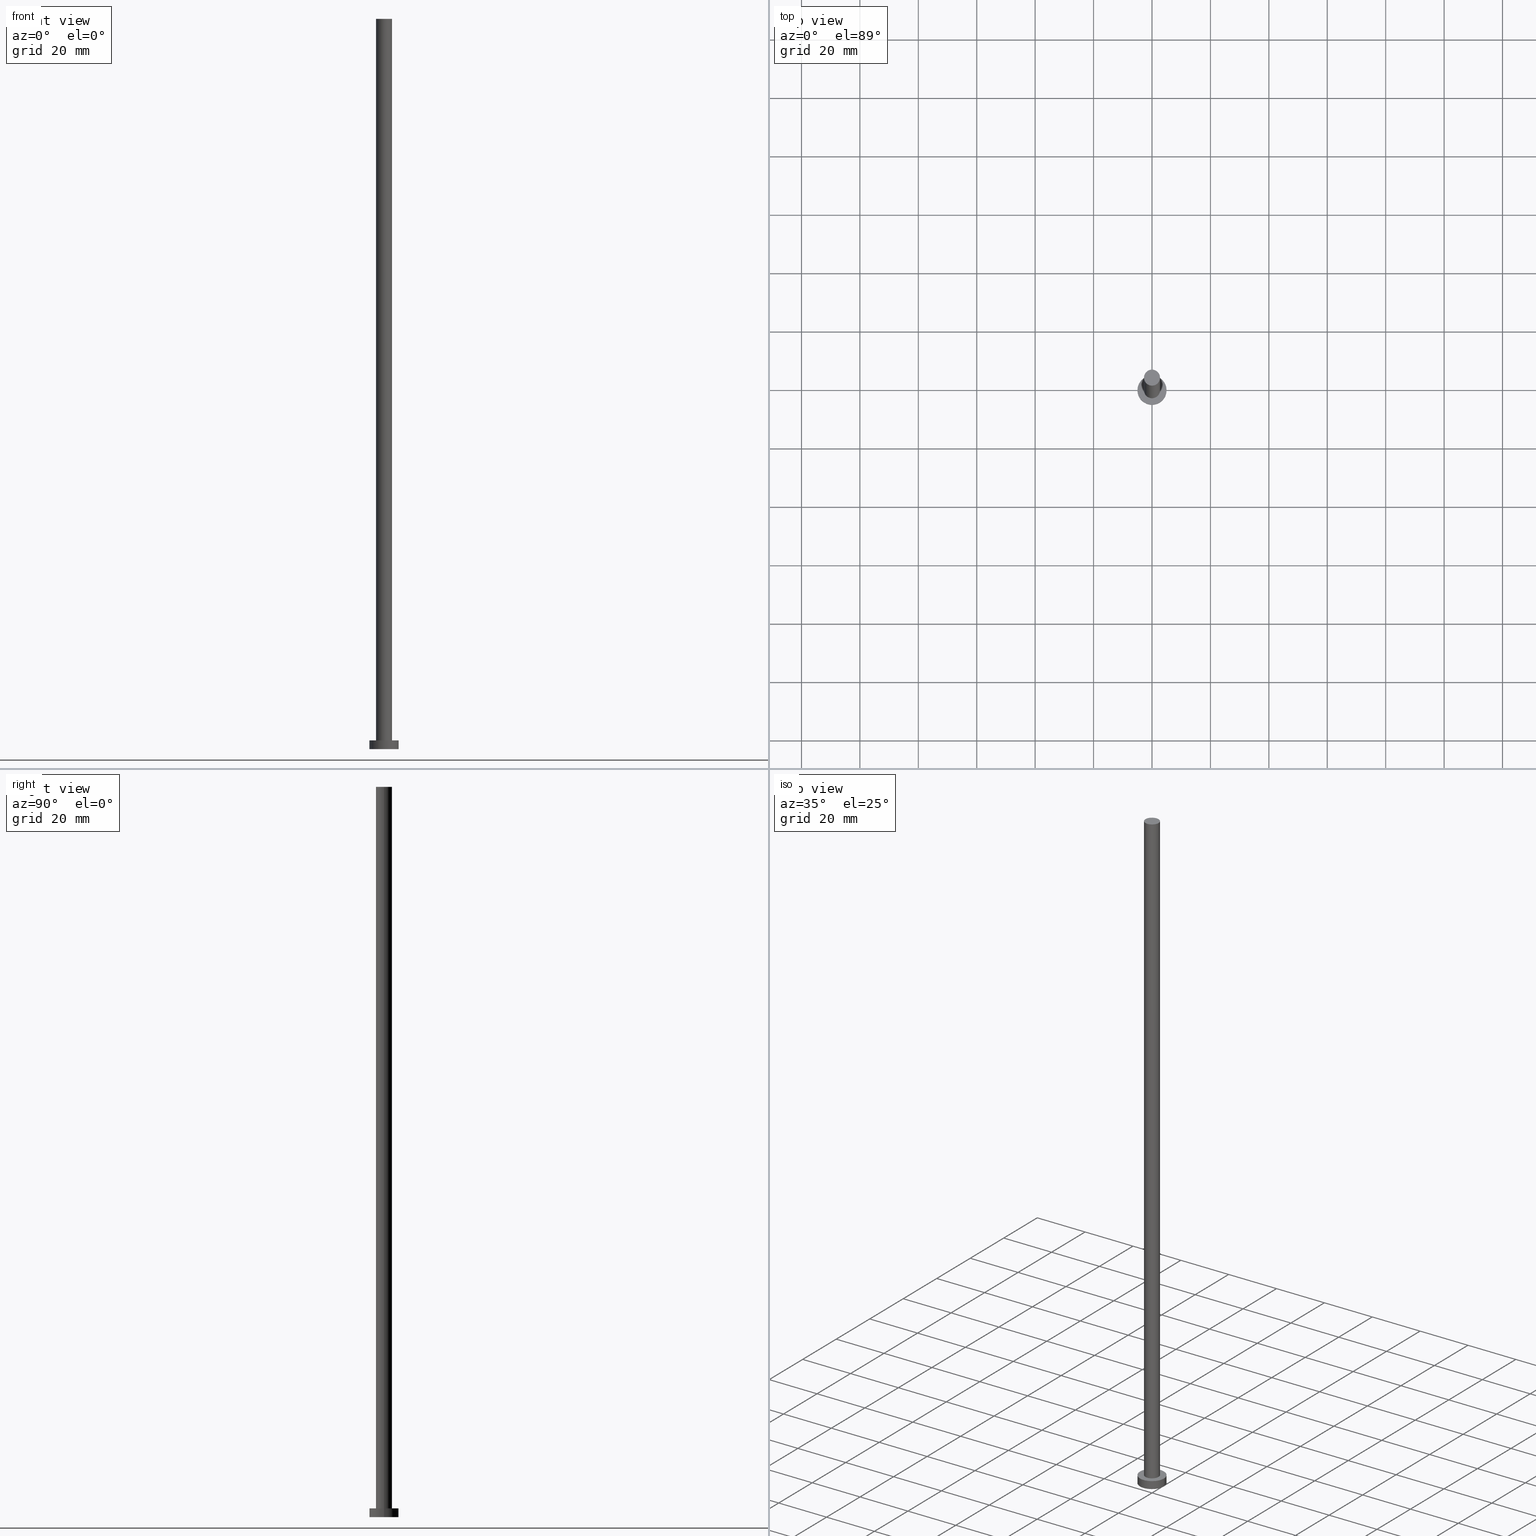
[diagram: canonical four-view strip — front | top / right | iso, engineering-drawing reading convention]
A machine part, canonical four-view strip (front | top / right | iso — engineering-drawing reading convention). The complete STEP part file that produces these views, byte-faithful:
ISO-10303-21;
HEADER;
FILE_DESCRIPTION (( 'STEP AP203' ),
    '1' );
FILE_NAME ('622f.STEP',
    '2023-02-12T11:41:53',
    ( '' ),
    ( '' ),
    'SwSTEP 2.0',
    'SolidWorks 2019',
    '' );
FILE_SCHEMA (( 'CONFIG_CONTROL_DESIGN' ));
ENDSEC;

DATA;
#1 = CALENDAR_DATE ( 2023, 12, 2 ) ;
#2 = ORIENTED_EDGE ( 'NONE', *, *, #231, .F. ) ;
#3 = VECTOR ( 'NONE', #37, 1000.000000000000000 ) ;
#4 = PERSON_AND_ORGANIZATION_ROLE ( 'creator' ) ;
#5 = FACE_OUTER_BOUND ( 'NONE', #221, .T. ) ;
#6 = COORDINATED_UNIVERSAL_TIME_OFFSET ( 1, 0, .AHEAD. ) ;
#7 = EDGE_LOOP ( 'NONE', ( #222, #241 ) ) ;
#8 = VERTEX_POINT ( 'NONE', #244 ) ;
#9 = LOCAL_TIME ( 12, 41, 53.00000000000000000, #167 ) ;
#10 = ORIENTED_EDGE ( 'NONE', *, *, #129, .T. ) ;
#11 = EDGE_CURVE ( 'NONE', #192, #8, #41, .T. ) ;
#12 = LOCAL_TIME ( 12, 41, 53.00000000000000000, #125 ) ;
#13 = CIRCLE ( 'NONE', #88, 5.000000000000000000 ) ;
#14 = CARTESIAN_POINT ( 'NONE',  ( -2.750000000000000000, 0.000000000000000000, 3.000000000000000000 ) ) ;
#15 = PRODUCT_DEFINITION ( 'NEZN�M�', '', #94, #51 ) ;
#16 = DIRECTION ( 'NONE',  ( -1.000000000000000000, 0.000000000000000000, 0.000000000000000000 ) ) ;
#17 = MECHANICAL_CONTEXT ( 'NONE', #20, 'mechanical' ) ;
#18 = ORIENTED_EDGE ( 'NONE', *, *, #11, .F. ) ;
#19 = CC_DESIGN_PERSON_AND_ORGANIZATION_ASSIGNMENT ( #84, #4, ( #94 ) ) ;
#20 = APPLICATION_CONTEXT ( 'configuration controlled 3d designs of mechanical parts and assemblies' ) ;
#21 = CIRCLE ( 'NONE', #110, 2.750000000000000000 ) ;
#22 = DATE_TIME_ROLE ( 'creation_date' ) ;
#23 = UNCERTAINTY_MEASURE_WITH_UNIT (LENGTH_MEASURE( 1.000000000000000082E-05 ), #100, 'distance_accuracy_value', 'NONE');
#24 = ORIENTED_EDGE ( 'NONE', *, *, #209, .F. ) ;
#25 = CALENDAR_DATE ( 2023, 12, 2 ) ;
#26 = DIRECTION ( 'NONE',  ( -0.000000000000000000, -0.000000000000000000, -1.000000000000000000 ) ) ;
#27 = AXIS2_PLACEMENT_3D ( 'NONE', #242, #240, #154 ) ;
#28 = CC_DESIGN_APPROVAL ( #190, ( #211 ) ) ;
#29 = PLANE ( 'NONE',  #27 ) ;
#30 = ADVANCED_FACE ( 'NONE', ( #76 ), #168, .T. ) ;
#31 = CARTESIAN_POINT ( 'NONE',  ( 5.000000000000000000, 6.123233995736766282E-16, 0.000000000000000000 ) ) ;
#32 = DIRECTION ( 'NONE',  ( 0.000000000000000000, 0.000000000000000000, 1.000000000000000000 ) ) ;
#33 = PRODUCT ( '622f', '622f', '', ( #17 ) ) ;
#34 = AXIS2_PLACEMENT_3D ( 'NONE', #229, #99, #62 ) ;
#35 = CARTESIAN_POINT ( 'NONE',  ( -2.750000000000000000, 0.000000000000000000, 250.0000000000000000 ) ) ;
#36 = CARTESIAN_POINT ( 'NONE',  ( -5.000000000000000000, 0.000000000000000000, 0.000000000000000000 ) ) ;
#37 = DIRECTION ( 'NONE',  ( -0.000000000000000000, -0.000000000000000000, -1.000000000000000000 ) ) ;
#38 = LINE ( 'NONE', #60, #40 ) ;
#39 = PERSON_AND_ORGANIZATION ( #212, #148 ) ;
#40 = VECTOR ( 'NONE', #140, 1000.000000000000000 ) ;
#41 = CIRCLE ( 'NONE', #122, 5.000000000000000000 ) ;
#42 = ORIENTED_EDGE ( 'NONE', *, *, #67, .T. ) ;
#43 = LOCAL_TIME ( 12, 41, 53.00000000000000000, #105 ) ;
#44 = APPROVAL_STATUS ( 'not_yet_approved' ) ;
#45 = CC_DESIGN_PERSON_AND_ORGANIZATION_ASSIGNMENT ( #191, #106, ( #15 ) ) ;
#46 = CALENDAR_DATE ( 2023, 12, 2 ) ;
#47 = CARTESIAN_POINT ( 'NONE',  ( -5.000000000000000000, 0.000000000000000000, 3.000000000000000000 ) ) ;
#48 = CARTESIAN_POINT ( 'NONE',  ( 0.000000000000000000, 0.000000000000000000, 3.000000000000000000 ) ) ;
#49 = CC_DESIGN_PERSON_AND_ORGANIZATION_ASSIGNMENT ( #86, #233, ( #94 ) ) ;
#50 = CIRCLE ( 'NONE', #200, 2.750000000000000000 ) ;
#51 = DESIGN_CONTEXT ( 'detailed design', #121, 'design' ) ;
#52 = DIRECTION ( 'NONE',  ( -1.000000000000000000, 0.000000000000000000, 0.000000000000000000 ) ) ;
#53 = ORIENTED_EDGE ( 'NONE', *, *, #209, .T. ) ;
#54 = CARTESIAN_POINT ( 'NONE',  ( 0.000000000000000000, 0.000000000000000000, 0.000000000000000000 ) ) ;
#55 = CIRCLE ( 'NONE', #57, 2.750000000000000000 ) ;
#56 = VECTOR ( 'NONE', #152, 1000.000000000000000 ) ;
#57 = AXIS2_PLACEMENT_3D ( 'NONE', #118, #227, #59 ) ;
#58 = FACE_OUTER_BOUND ( 'NONE', #202, .T. ) ;
#59 = DIRECTION ( 'NONE',  ( 1.000000000000000000, 0.000000000000000000, 0.000000000000000000 ) ) ;
#60 = CARTESIAN_POINT ( 'NONE',  ( 2.750000000000000000, 3.367778697655221012E-16, 250.0000000000000000 ) ) ;
#61 = ADVANCED_FACE ( 'NONE', ( #224, #135 ), #90, .T. ) ;
#62 = DIRECTION ( 'NONE',  ( 1.000000000000000000, 0.000000000000000000, 0.000000000000000000 ) ) ;
#63 = DATE_AND_TIME ( #46, #9 ) ;
#64 = CC_DESIGN_PERSON_AND_ORGANIZATION_ASSIGNMENT ( #39, #203, ( #33 ) ) ;
#65 = VERTEX_POINT ( 'NONE', #31 ) ;
#66 = DATE_AND_TIME ( #149, #43 ) ;
#67 = EDGE_CURVE ( 'NONE', #8, #192, #145, .T. ) ;
#68 = CLOSED_SHELL ( 'NONE', ( #119, #102, #30, #61, #243, #178, #115 ) ) ;
#69 = CC_DESIGN_APPROVAL ( #89, ( #94 ) ) ;
#70 = APPROVAL_ROLE ( '' ) ;
#71 = DIRECTION ( 'NONE',  ( 0.000000000000000000, 0.000000000000000000, 1.000000000000000000 ) ) ;
#72 = APPROVAL_DATE_TIME ( #131, #103 ) ;
#73 = EDGE_CURVE ( 'NONE', #65, #252, #13, .T. ) ;
#74 = ORIENTED_EDGE ( 'NONE', *, *, #231, .T. ) ;
#75 = ORIENTED_EDGE ( 'NONE', *, *, #239, .F. ) ;
#76 = FACE_OUTER_BOUND ( 'NONE', #189, .T. ) ;
#77 = EDGE_LOOP ( 'NONE', ( #42, #216 ) ) ;
#78 = CC_DESIGN_DATE_AND_TIME_ASSIGNMENT ( #254, #22, ( #15 ) ) ;
#79 = DIRECTION ( 'NONE',  ( 0.000000000000000000, 0.000000000000000000, 1.000000000000000000 ) ) ;
#80 = CARTESIAN_POINT ( 'NONE',  ( 0.000000000000000000, 0.000000000000000000, 3.000000000000000000 ) ) ;
#81 = CARTESIAN_POINT ( 'NONE',  ( 2.750000000000000000, 3.367778697655221012E-16, 250.0000000000000000 ) ) ;
#82 = DIRECTION ( 'NONE',  ( 0.000000000000000000, 0.000000000000000000, 1.000000000000000000 ) ) ;
#83 = EDGE_CURVE ( 'NONE', #8, #252, #220, .T. ) ;
#84 = PERSON_AND_ORGANIZATION ( #212, #148 ) ;
#85 = PERSON_AND_ORGANIZATION_ROLE ( 'classification_officer' ) ;
#86 = PERSON_AND_ORGANIZATION ( #212, #148 ) ;
#87 = EDGE_LOOP ( 'NONE', ( #183, #112 ) ) ;
#88 = AXIS2_PLACEMENT_3D ( 'NONE', #54, #32, #133 ) ;
#89 = APPROVAL ( #186, 'NEUR�EN�' ) ;
#90 = PLANE ( 'NONE',  #98 ) ;
#91 = DATE_AND_TIME ( #1, #180 ) ;
#92 = ORIENTED_EDGE ( 'NONE', *, *, #160, .T. ) ;
#93 = CYLINDRICAL_SURFACE ( 'NONE', #127, 5.000000000000000000 ) ;
#94 = PRODUCT_DEFINITION_FORMATION_WITH_SPECIFIED_SOURCE ( 'LIBOVOLN�', '', #33, .NOT_KNOWN. ) ;
#95 = AXIS2_PLACEMENT_3D ( 'NONE', #109, #208, #113 ) ;
#96 = FACE_OUTER_BOUND ( 'NONE', #170, .T. ) ;
#97 = CARTESIAN_POINT ( 'NONE',  ( 0.000000000000000000, 0.000000000000000000, 0.000000000000000000 ) ) ;
#98 = AXIS2_PLACEMENT_3D ( 'NONE', #207, #71, #155 ) ;
#99 = DIRECTION ( 'NONE',  ( 0.000000000000000000, 0.000000000000000000, 1.000000000000000000 ) ) ;
#100 =( LENGTH_UNIT ( ) NAMED_UNIT ( * ) SI_UNIT ( .MILLI., .METRE. ) );
#101 = APPROVAL_PERSON_ORGANIZATION ( #236, #190, #70 ) ;
#102 = ADVANCED_FACE ( 'NONE', ( #206 ), #93, .T. ) ;
#103 = APPROVAL ( #44, 'NEUR�EN�' ) ;
#104 = AXIS2_PLACEMENT_3D ( 'NONE', #48, #205, #52 ) ;
#105 = COORDINATED_UNIVERSAL_TIME_OFFSET ( 1, 0, .AHEAD. ) ;
#106 = PERSON_AND_ORGANIZATION_ROLE ( 'creator' ) ;
#107 = ORIENTED_EDGE ( 'NONE', *, *, #197, .T. ) ;
#108 = APPROVAL_DATE_TIME ( #91, #89 ) ;
#109 = CARTESIAN_POINT ( 'NONE',  ( 0.000000000000000000, 0.000000000000000000, 3.000000000000000000 ) ) ;
#110 = AXIS2_PLACEMENT_3D ( 'NONE', #80, #249, #120 ) ;
#111 = APPROVAL_ROLE ( '' ) ;
#112 = ORIENTED_EDGE ( 'NONE', *, *, #173, .F. ) ;
#113 = DIRECTION ( 'NONE',  ( 1.000000000000000000, 0.000000000000000000, 0.000000000000000000 ) ) ;
#114 = ADVANCED_BREP_SHAPE_REPRESENTATION ( '622f', ( #162, #175 ), #201 ) ;
#115 = ADVANCED_FACE ( 'NONE', ( #5 ), #29, .T. ) ;
#116 = CARTESIAN_POINT ( 'NONE',  ( 0.000000000000000000, 0.000000000000000000, 3.000000000000000000 ) ) ;
#117 = LOCAL_TIME ( 12, 41, 53.00000000000000000, #151 ) ;
#118 = CARTESIAN_POINT ( 'NONE',  ( 0.000000000000000000, 0.000000000000000000, 250.0000000000000000 ) ) ;
#119 = ADVANCED_FACE ( 'NONE', ( #96 ), #174, .T. ) ;
#120 = DIRECTION ( 'NONE',  ( 1.000000000000000000, 0.000000000000000000, 0.000000000000000000 ) ) ;
#121 = APPLICATION_CONTEXT ( 'configuration controlled 3d designs of mechanical parts and assemblies' ) ;
#122 = AXIS2_PLACEMENT_3D ( 'NONE', #116, #136, #153 ) ;
#123 = PRODUCT_DEFINITION_SHAPE ( 'NONE', 'NONE',  #15 ) ;
#124 =( NAMED_UNIT ( * ) PLANE_ANGLE_UNIT ( ) SI_UNIT ( $, .RADIAN. ) );
#125 = COORDINATED_UNIVERSAL_TIME_OFFSET ( 1, 0, .AHEAD. ) ;
#126 = AXIS2_PLACEMENT_3D ( 'NONE', #157, #138, #16 ) ;
#127 = AXIS2_PLACEMENT_3D ( 'NONE', #194, #26, #171 ) ;
#128 = ORIENTED_EDGE ( 'NONE', *, *, #83, .F. ) ;
#129 = EDGE_CURVE ( 'NONE', #204, #185, #225, .T. ) ;
#130 = APPROVAL_PERSON_ORGANIZATION ( #234, #89, #169 ) ;
#131 = DATE_AND_TIME ( #181, #12 ) ;
#132 = ORIENTED_EDGE ( 'NONE', *, *, #67, .F. ) ;
#133 = DIRECTION ( 'NONE',  ( 1.000000000000000000, 0.000000000000000000, 0.000000000000000000 ) ) ;
#134 = APPROVAL_PERSON_ORGANIZATION ( #199, #103, #111 ) ;
#135 = FACE_OUTER_BOUND ( 'NONE', #77, .T. ) ;
#136 = DIRECTION ( 'NONE',  ( 0.000000000000000000, 0.000000000000000000, 1.000000000000000000 ) ) ;
#137 = PLANE ( 'NONE',  #188 ) ;
#138 = DIRECTION ( 'NONE',  ( -0.000000000000000000, -0.000000000000000000, -1.000000000000000000 ) ) ;
#139 = CARTESIAN_POINT ( 'NONE',  ( 5.000000000000000000, 6.123233995736766282E-16, 3.000000000000000000 ) ) ;
#140 = DIRECTION ( 'NONE',  ( -0.000000000000000000, -0.000000000000000000, -1.000000000000000000 ) ) ;
#141 = AXIS2_PLACEMENT_3D ( 'NONE', #177, #230, #179 ) ;
#142 = CARTESIAN_POINT ( 'NONE',  ( 0.000000000000000000, 0.000000000000000000, 250.0000000000000000 ) ) ;
#143 = APPROVAL_STATUS ( 'not_yet_approved' ) ;
#144 = VECTOR ( 'NONE', #158, 1000.000000000000000 ) ;
#145 = CIRCLE ( 'NONE', #95, 5.000000000000000000 ) ;
#146 = APPROVAL_DATE_TIME ( #66, #190 ) ;
#147 = ORIENTED_EDGE ( 'NONE', *, *, #73, .T. ) ;
#148 = ORGANIZATION ( 'NEUR�EN�', 'NEUR�EN�', '' ) ;
#149 = CALENDAR_DATE ( 2023, 12, 2 ) ;
#150 = VERTEX_POINT ( 'NONE', #195 ) ;
#151 = COORDINATED_UNIVERSAL_TIME_OFFSET ( 1, 0, .AHEAD. ) ;
#152 = DIRECTION ( 'NONE',  ( -0.000000000000000000, -0.000000000000000000, -1.000000000000000000 ) ) ;
#153 = DIRECTION ( 'NONE',  ( 1.000000000000000000, 0.000000000000000000, 0.000000000000000000 ) ) ;
#154 = DIRECTION ( 'NONE',  ( 1.000000000000000000, 0.000000000000000000, -0.000000000000000000 ) ) ;
#155 = DIRECTION ( 'NONE',  ( 1.000000000000000000, 0.000000000000000000, -0.000000000000000000 ) ) ;
#156 = DIRECTION ( 'NONE',  ( -1.000000000000000000, 0.000000000000000000, 0.000000000000000000 ) ) ;
#157 = CARTESIAN_POINT ( 'NONE',  ( 0.000000000000000000, 0.000000000000000000, 250.0000000000000000 ) ) ;
#158 = DIRECTION ( 'NONE',  ( -0.000000000000000000, -0.000000000000000000, -1.000000000000000000 ) ) ;
#159 = DIRECTION ( 'NONE',  ( 1.000000000000000000, 0.000000000000000000, 0.000000000000000000 ) ) ;
#160 = EDGE_CURVE ( 'NONE', #252, #65, #253, .T. ) ;
#161 = DIRECTION ( 'NONE',  ( 1.000000000000000000, 0.000000000000000000, -0.000000000000000000 ) ) ;
#162 = MANIFOLD_SOLID_BREP ( 'P�idat vysunut�m3', #68 ) ;
#163 = EDGE_LOOP ( 'NONE', ( #18, #74, #147, #128 ) ) ;
#164 = PRODUCT_RELATED_PRODUCT_CATEGORY ( 'detail', '', ( #33 ) ) ;
#165 = PERSON_AND_ORGANIZATION ( #212, #148 ) ;
#166 = ORIENTED_EDGE ( 'NONE', *, *, #197, .F. ) ;
#167 = COORDINATED_UNIVERSAL_TIME_OFFSET ( 1, 0, .AHEAD. ) ;
#168 = CYLINDRICAL_SURFACE ( 'NONE', #104, 5.000000000000000000 ) ;
#169 = APPROVAL_ROLE ( '' ) ;
#170 = EDGE_LOOP ( 'NONE', ( #24, #237, #223, #193 ) ) ;
#171 = DIRECTION ( 'NONE',  ( -1.000000000000000000, 0.000000000000000000, 0.000000000000000000 ) ) ;
#172 = VERTEX_POINT ( 'NONE', #81 ) ;
#173 = EDGE_CURVE ( 'NONE', #150, #185, #21, .T. ) ;
#174 = CYLINDRICAL_SURFACE ( 'NONE', #235, 2.750000000000000000 ) ;
#175 = AXIS2_PLACEMENT_3D ( 'NONE', #245, #79, #238 ) ;
#176 = CC_DESIGN_SECURITY_CLASSIFICATION ( #211, ( #94 ) ) ;
#177 = CARTESIAN_POINT ( 'NONE',  ( 0.000000000000000000, 0.000000000000000000, 0.000000000000000000 ) ) ;
#178 = ADVANCED_FACE ( 'NONE', ( #58 ), #215, .T. ) ;
#179 = DIRECTION ( 'NONE',  ( 1.000000000000000000, 0.000000000000000000, 0.000000000000000000 ) ) ;
#180 = LOCAL_TIME ( 12, 41, 53.00000000000000000, #6 ) ;
#181 = CALENDAR_DATE ( 2023, 12, 2 ) ;
#182 = ORIENTED_EDGE ( 'NONE', *, *, #83, .T. ) ;
#183 = ORIENTED_EDGE ( 'NONE', *, *, #232, .F. ) ;
#184 = DATE_TIME_ROLE ( 'classification_date' ) ;
#185 = VERTEX_POINT ( 'NONE', #14 ) ;
#186 = APPROVAL_STATUS ( 'not_yet_approved' ) ;
#187 = ORIENTED_EDGE ( 'NONE', *, *, #232, .T. ) ;
#188 = AXIS2_PLACEMENT_3D ( 'NONE', #97, #82, #161 ) ;
#189 = EDGE_LOOP ( 'NONE', ( #2, #132, #182, #92 ) ) ;
#190 = APPROVAL ( #143, 'NEUR�EN�' ) ;
#191 = PERSON_AND_ORGANIZATION ( #212, #148 ) ;
#192 = VERTEX_POINT ( 'NONE', #196 ) ;
#193 = ORIENTED_EDGE ( 'NONE', *, *, #129, .F. ) ;
#194 = CARTESIAN_POINT ( 'NONE',  ( 0.000000000000000000, 0.000000000000000000, 3.000000000000000000 ) ) ;
#195 = CARTESIAN_POINT ( 'NONE',  ( 2.750000000000000000, 3.367778697655221012E-16, 3.000000000000000000 ) ) ;
#196 = CARTESIAN_POINT ( 'NONE',  ( 5.000000000000000000, 6.123233995736766282E-16, 3.000000000000000000 ) ) ;
#197 = EDGE_CURVE ( 'NONE', #204, #172, #246, .T. ) ;
#198 =( NAMED_UNIT ( * ) SI_UNIT ( $, .STERADIAN. ) SOLID_ANGLE_UNIT ( ) );
#199 = PERSON_AND_ORGANIZATION ( #212, #148 ) ;
#200 = AXIS2_PLACEMENT_3D ( 'NONE', #213, #228, #159 ) ;
#201 =( GEOMETRIC_REPRESENTATION_CONTEXT ( 3 ) GLOBAL_UNCERTAINTY_ASSIGNED_CONTEXT ( ( #23 ) ) GLOBAL_UNIT_ASSIGNED_CONTEXT ( ( #100, #124, #198 ) ) REPRESENTATION_CONTEXT ( 'NONE', 'WORKASPACE' ) );
#202 = EDGE_LOOP ( 'NONE', ( #75, #166, #10, #187 ) ) ;
#203 = PERSON_AND_ORGANIZATION_ROLE ( 'design_owner' ) ;
#204 = VERTEX_POINT ( 'NONE', #250 ) ;
#205 = DIRECTION ( 'NONE',  ( -0.000000000000000000, -0.000000000000000000, -1.000000000000000000 ) ) ;
#206 = FACE_OUTER_BOUND ( 'NONE', #163, .T. ) ;
#207 = CARTESIAN_POINT ( 'NONE',  ( 0.000000000000000000, 0.000000000000000000, 3.000000000000000000 ) ) ;
#208 = DIRECTION ( 'NONE',  ( 0.000000000000000000, 0.000000000000000000, 1.000000000000000000 ) ) ;
#209 = EDGE_CURVE ( 'NONE', #172, #204, #55, .T. ) ;
#210 = APPLICATION_PROTOCOL_DEFINITION ( 'international standard', 'config_control_design', 1994, #20 ) ;
#211 = SECURITY_CLASSIFICATION ( '', '', #255 ) ;
#212 = PERSON ( 'NEUR�EN�', 'NEUR�EN�', 'NEUR�EN�', ('NEUR�EN�'), ('NEUR�EN�'), ('NEUR�EN�') ) ;
#213 = CARTESIAN_POINT ( 'NONE',  ( 0.000000000000000000, 0.000000000000000000, 3.000000000000000000 ) ) ;
#214 = FACE_OUTER_BOUND ( 'NONE', #7, .T. ) ;
#215 = CYLINDRICAL_SURFACE ( 'NONE', #126, 2.750000000000000000 ) ;
#216 = ORIENTED_EDGE ( 'NONE', *, *, #11, .T. ) ;
#217 = APPLICATION_PROTOCOL_DEFINITION ( 'international standard', 'config_control_design', 1994, #121 ) ;
#218 = CC_DESIGN_APPROVAL ( #103, ( #15 ) ) ;
#219 = SHAPE_DEFINITION_REPRESENTATION ( #123, #114 ) ;
#220 = LINE ( 'NONE', #47, #56 ) ;
#221 = EDGE_LOOP ( 'NONE', ( #107, #53 ) ) ;
#222 = ORIENTED_EDGE ( 'NONE', *, *, #160, .F. ) ;
#223 = ORIENTED_EDGE ( 'NONE', *, *, #173, .T. ) ;
#224 = FACE_BOUND ( 'NONE', #87, .T. ) ;
#225 = LINE ( 'NONE', #35, #3 ) ;
#226 = CC_DESIGN_DATE_AND_TIME_ASSIGNMENT ( #63, #184, ( #211 ) ) ;
#227 = DIRECTION ( 'NONE',  ( 0.000000000000000000, 0.000000000000000000, 1.000000000000000000 ) ) ;
#228 = DIRECTION ( 'NONE',  ( 0.000000000000000000, 0.000000000000000000, 1.000000000000000000 ) ) ;
#229 = CARTESIAN_POINT ( 'NONE',  ( 0.000000000000000000, 0.000000000000000000, 250.0000000000000000 ) ) ;
#230 = DIRECTION ( 'NONE',  ( 0.000000000000000000, 0.000000000000000000, 1.000000000000000000 ) ) ;
#231 = EDGE_CURVE ( 'NONE', #192, #65, #248, .T. ) ;
#232 = EDGE_CURVE ( 'NONE', #185, #150, #50, .T. ) ;
#233 = PERSON_AND_ORGANIZATION_ROLE ( 'design_supplier' ) ;
#234 = PERSON_AND_ORGANIZATION ( #212, #148 ) ;
#235 = AXIS2_PLACEMENT_3D ( 'NONE', #142, #247, #156 ) ;
#236 = PERSON_AND_ORGANIZATION ( #212, #148 ) ;
#237 = ORIENTED_EDGE ( 'NONE', *, *, #239, .T. ) ;
#238 = DIRECTION ( 'NONE',  ( 1.000000000000000000, 0.000000000000000000, 0.000000000000000000 ) ) ;
#239 = EDGE_CURVE ( 'NONE', #172, #150, #38, .T. ) ;
#240 = DIRECTION ( 'NONE',  ( 0.000000000000000000, 0.000000000000000000, 1.000000000000000000 ) ) ;
#241 = ORIENTED_EDGE ( 'NONE', *, *, #73, .F. ) ;
#242 = CARTESIAN_POINT ( 'NONE',  ( 0.000000000000000000, 0.000000000000000000, 250.0000000000000000 ) ) ;
#243 = ADVANCED_FACE ( 'NONE', ( #214 ), #137, .F. ) ;
#244 = CARTESIAN_POINT ( 'NONE',  ( -5.000000000000000000, 0.000000000000000000, 3.000000000000000000 ) ) ;
#245 = CARTESIAN_POINT ( 'NONE',  ( 0.000000000000000000, 0.000000000000000000, 0.000000000000000000 ) ) ;
#246 = CIRCLE ( 'NONE', #34, 2.750000000000000000 ) ;
#247 = DIRECTION ( 'NONE',  ( -0.000000000000000000, -0.000000000000000000, -1.000000000000000000 ) ) ;
#248 = LINE ( 'NONE', #139, #144 ) ;
#249 = DIRECTION ( 'NONE',  ( 0.000000000000000000, 0.000000000000000000, 1.000000000000000000 ) ) ;
#250 = CARTESIAN_POINT ( 'NONE',  ( -2.750000000000000000, 0.000000000000000000, 250.0000000000000000 ) ) ;
#251 = CC_DESIGN_PERSON_AND_ORGANIZATION_ASSIGNMENT ( #165, #85, ( #211 ) ) ;
#252 = VERTEX_POINT ( 'NONE', #36 ) ;
#253 = CIRCLE ( 'NONE', #141, 5.000000000000000000 ) ;
#254 = DATE_AND_TIME ( #25, #117 ) ;
#255 = SECURITY_CLASSIFICATION_LEVEL ( 'unclassified' ) ;
ENDSEC;
END-ISO-10303-21;
